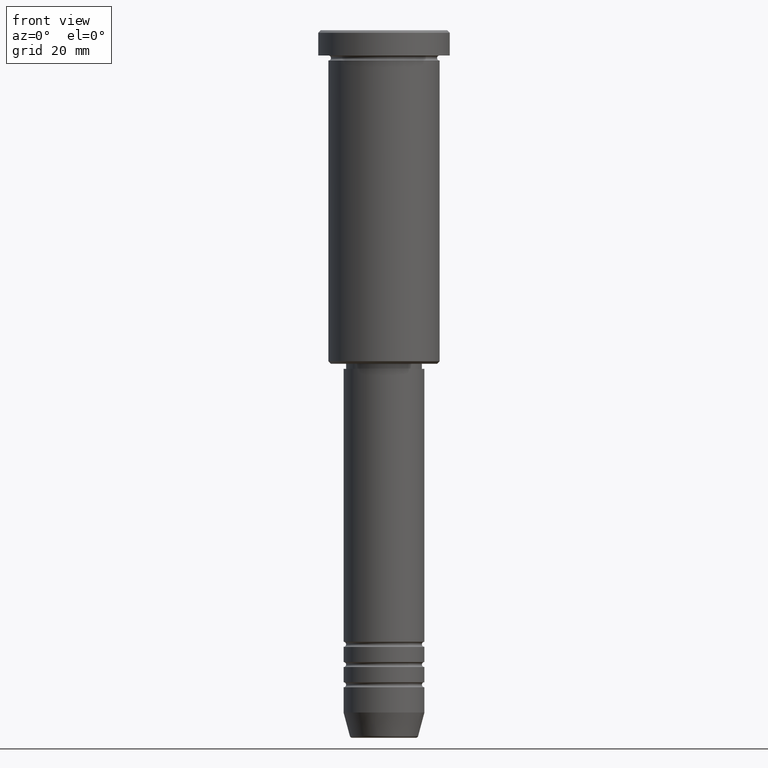
[diagram: clean part render]
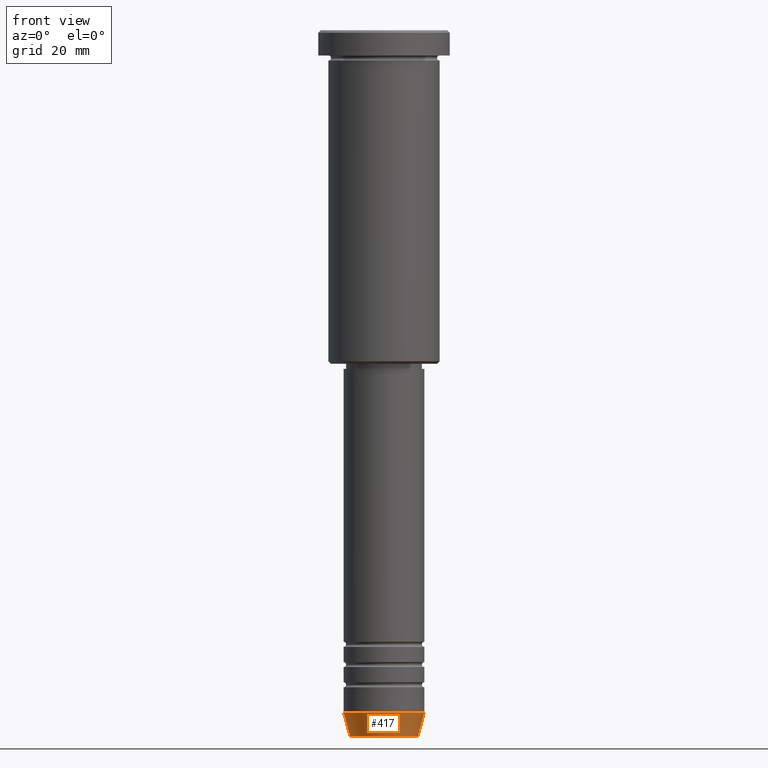
[diagram: same view with one face highlighted and labeled with its STEP entity id]
A machine part, front view. The second image highlights one B-rep face of the part: STEP entity #417.
In plain terms, the highlighted conical surface has half-angle 15 deg.
Its self-contained STEP definition (entity closure, byte-faithful):
#2 = CARTESIAN_POINT ( 'NONE',  ( 8.000000000000000000, 0.000000000000000000, -135.0000000000000000 ) ) ;
#3 = AXIS2_PLACEMENT_3D ( 'NONE', #255, #166, #526 ) ;
#13 = LINE ( 'NONE', #949, #328 ) ;
#30 = DIRECTION ( 'NONE',  ( -0.000000000000000000, -0.000000000000000000, 1.000000000000000000 ) ) ;
#77 = CIRCLE ( 'NONE', #238, 8.000000000000000000 ) ;
#85 = EDGE_CURVE ( 'NONE', #765, #563, #13, .T. ) ;
#148 = CARTESIAN_POINT ( 'NONE',  ( -6.759553456999436882, 9.037619948979304241E-16, -139.6294095225512706 ) ) ;
#166 = DIRECTION ( 'NONE',  ( -0.000000000000000000, -0.000000000000000000, 1.000000000000000000 ) ) ;
#185 = ORIENTED_EDGE ( 'NONE', *, *, #1046, .T. ) ;
#204 = FACE_OUTER_BOUND ( 'NONE', #378, .T. ) ;
#229 = VERTEX_POINT ( 'NONE', #148 ) ;
#238 = AXIS2_PLACEMENT_3D ( 'NONE', #856, #511, #1179 ) ;
#255 = CARTESIAN_POINT ( 'NONE',  ( 0.000000000000000000, 0.000000000000000000, -139.6294095225512706 ) ) ;
#290 = CONICAL_SURFACE ( 'NONE', #1075, 8.000000000000000000, 0.2617993877991502405 ) ;
#321 = LINE ( 'NONE', #393, #998 ) ;
#328 = VECTOR ( 'NONE', #932, 1000.000000000000114 ) ;
#378 = EDGE_LOOP ( 'NONE', ( #1183, #185, #844, #1132 ) ) ;
#393 = CARTESIAN_POINT ( 'NONE',  ( -8.000000000000000000, 9.797174393178825657E-16, -135.0000000000000000 ) ) ;
#417 = ADVANCED_FACE ( 'NONE', ( #204 ), #290, .T. ) ;
#482 = CARTESIAN_POINT ( 'NONE',  ( 0.000000000000000000, 0.000000000000000000, -135.0000000000000000 ) ) ;
#511 = DIRECTION ( 'NONE',  ( -0.000000000000000000, -0.000000000000000000, 1.000000000000000000 ) ) ;
#526 = DIRECTION ( 'NONE',  ( 1.000000000000000000, 0.000000000000000000, 0.000000000000000000 ) ) ;
#563 = VERTEX_POINT ( 'NONE', #2 ) ;
#586 = CARTESIAN_POINT ( 'NONE',  ( -8.000000000000000000, 9.797174393178825657E-16, -135.0000000000000000 ) ) ;
#587 = EDGE_CURVE ( 'NONE', #947, #563, #77, .T. ) ;
#593 = DIRECTION ( 'NONE',  ( -0.2588190451025214611, 3.169619151431774186E-17, 0.9659258262890679791 ) ) ;
#765 = VERTEX_POINT ( 'NONE', #822 ) ;
#822 = CARTESIAN_POINT ( 'NONE',  ( 6.759553456999436882, 0.000000000000000000, -139.6294095225512706 ) ) ;
#844 = ORIENTED_EDGE ( 'NONE', *, *, #85, .T. ) ;
#856 = CARTESIAN_POINT ( 'NONE',  ( 0.000000000000000000, 0.000000000000000000, -135.0000000000000000 ) ) ;
#907 = CIRCLE ( 'NONE', #3, 6.759553456999436882 ) ;
#932 = DIRECTION ( 'NONE',  ( 0.2588190451025214611, 0.000000000000000000, 0.9659258262890679791 ) ) ;
#947 = VERTEX_POINT ( 'NONE', #586 ) ;
#949 = CARTESIAN_POINT ( 'NONE',  ( 8.000000000000000000, 0.000000000000000000, -135.0000000000000000 ) ) ;
#960 = DIRECTION ( 'NONE',  ( 1.000000000000000000, 0.000000000000000000, 0.000000000000000000 ) ) ;
#961 = EDGE_CURVE ( 'NONE', #229, #947, #321, .T. ) ;
#998 = VECTOR ( 'NONE', #593, 1000.000000000000114 ) ;
#1046 = EDGE_CURVE ( 'NONE', #229, #765, #907, .T. ) ;
#1075 = AXIS2_PLACEMENT_3D ( 'NONE', #482, #30, #960 ) ;
#1132 = ORIENTED_EDGE ( 'NONE', *, *, #587, .F. ) ;
#1179 = DIRECTION ( 'NONE',  ( 1.000000000000000000, 0.000000000000000000, 0.000000000000000000 ) ) ;
#1183 = ORIENTED_EDGE ( 'NONE', *, *, #961, .F. ) ;